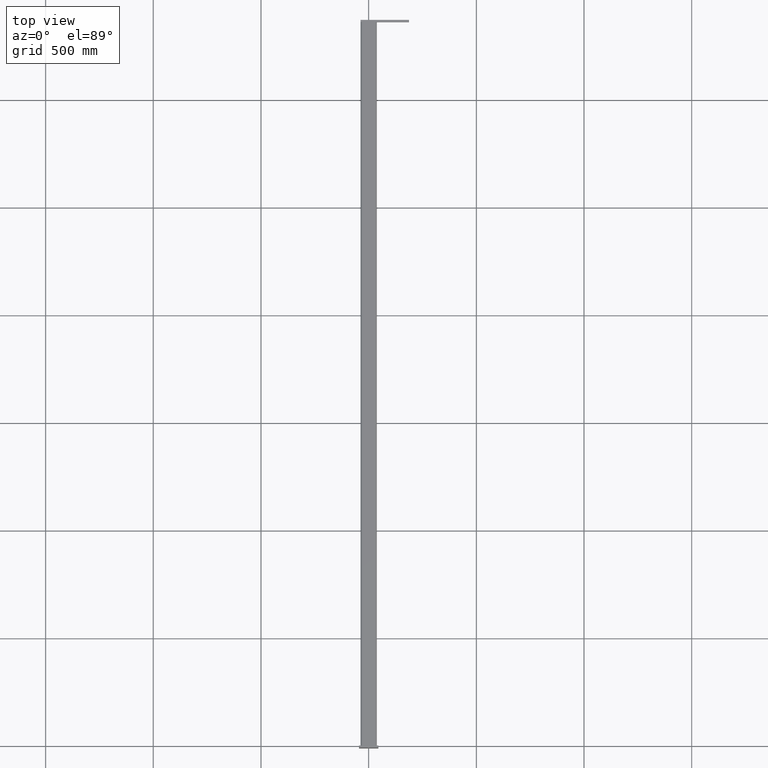
[diagram: clean part render]
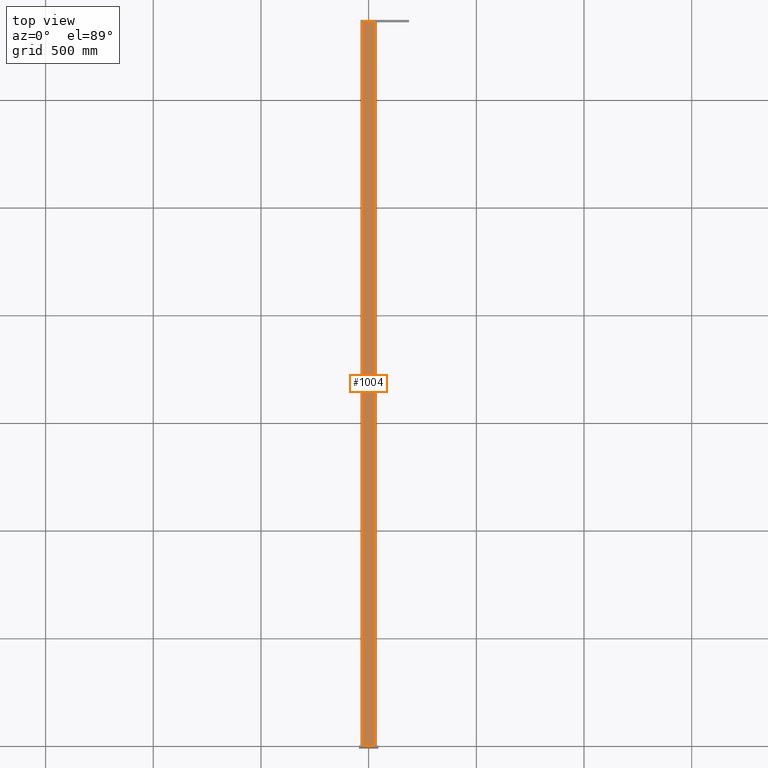
[diagram: same view with one face highlighted and labeled with its STEP entity id]
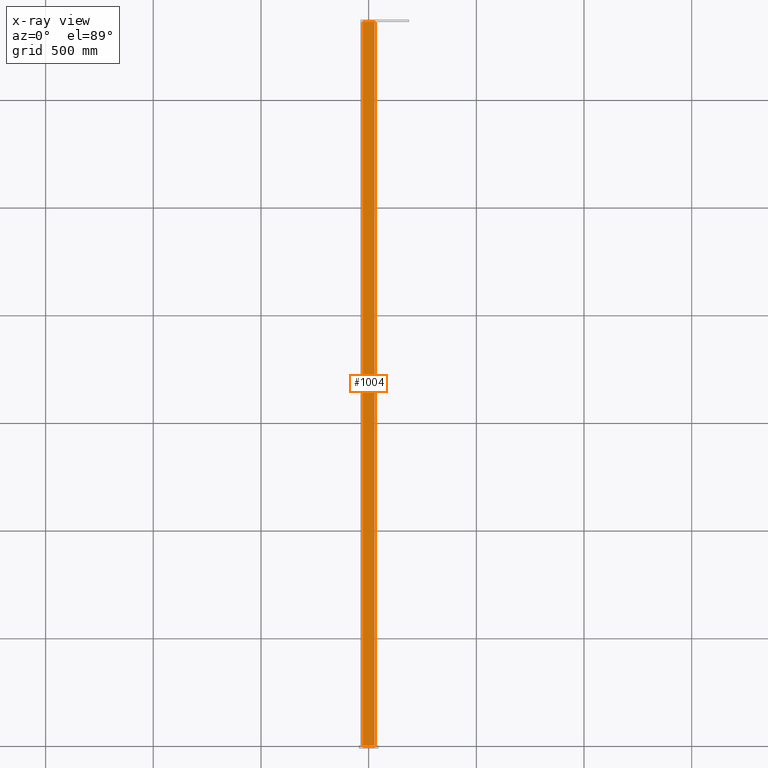
[diagram: x-ray of the same camera — body ghosted, the highlighted face saturated]
A machine part, top view. The second image highlights one B-rep face of the part: STEP entity #1004.
The next image is the same camera in x-ray: the body ghosted, the highlighted face saturated — about 0% of this face is hidden behind the body in this view.
In plain terms, the highlighted planar face has unit normal (0, 0, -1).
Its self-contained STEP definition (entity closure, byte-faithful):
#94 = DIRECTION ( 'NONE',  ( 0.000000000000000000, -1.000000000000000000, 1.261617073437677506E-16 ) ) ;
#118 = LINE ( 'NONE', #985, #2277 ) ;
#158 = ORIENTED_EDGE ( 'NONE', *, *, #635, .T. ) ;
#175 = VECTOR ( 'NONE', #994, 1000.000000000000000 ) ;
#279 = LINE ( 'NONE', #1538, #367 ) ;
#341 = CARTESIAN_POINT ( 'NONE',  ( 1680.500000000000000, -27.49999999999937117, -37.50000000000012079 ) ) ;
#367 = VECTOR ( 'NONE', #1177, 1000.000000000000000 ) ;
#461 = LINE ( 'NONE', #644, #1168 ) ;
#560 = CARTESIAN_POINT ( 'NONE',  ( -1680.500000000000000, 27.49999999999961631, -37.50000000000011369 ) ) ;
#563 = DIRECTION ( 'NONE',  ( -3.862588276837757019E-32, 1.261617073437677506E-16, 1.000000000000000000 ) ) ;
#601 = EDGE_CURVE ( 'NONE', #1408, #2313, #279, .T. ) ;
#615 = CARTESIAN_POINT ( 'NONE',  ( 1680.500000000000000, 27.50000000000064659, -37.50000000000011369 ) ) ;
#635 = EDGE_CURVE ( 'NONE', #2313, #1755, #118, .T. ) ;
#644 = CARTESIAN_POINT ( 'NONE',  ( -1680.500000000000000, 27.49999999999961275, -37.50000000000012790 ) ) ;
#788 = ORIENTED_EDGE ( 'NONE', *, *, #1115, .F. ) ;
#982 = LINE ( 'NONE', #1174, #175 ) ;
#985 = CARTESIAN_POINT ( 'NONE',  ( 1680.500000000000000, 27.50000000000064304, -37.50000000000012790 ) ) ;
#994 = DIRECTION ( 'NONE',  ( 1.000000000000000000, 3.061616997868382648E-16, -0.000000000000000000 ) ) ;
#1004 = ADVANCED_FACE ( 'NONE', ( #2201 ), #2237, .F. ) ;
#1083 = EDGE_CURVE ( 'NONE', #1796, #1755, #982, .T. ) ;
#1115 = EDGE_CURVE ( 'NONE', #1408, #1796, #461, .T. ) ;
#1168 = VECTOR ( 'NONE', #1183, 1000.000000000000000 ) ;
#1174 = CARTESIAN_POINT ( 'NONE',  ( -1680.500000000000000, -27.50000000000040146, -37.50000000000012079 ) ) ;
#1177 = DIRECTION ( 'NONE',  ( 1.000000000000000000, 3.061616997868382648E-16, -0.000000000000000000 ) ) ;
#1183 = DIRECTION ( 'NONE',  ( 0.000000000000000000, -1.000000000000000000, 1.261617073437677506E-16 ) ) ;
#1262 = EDGE_LOOP ( 'NONE', ( #158, #1655, #788, #2354 ) ) ;
#1283 = AXIS2_PLACEMENT_3D ( 'NONE', #2045, #563, #1633 ) ;
#1408 = VERTEX_POINT ( 'NONE', #560 ) ;
#1538 = CARTESIAN_POINT ( 'NONE',  ( -1680.500000000000000, 27.49999999999961631, -37.50000000000011369 ) ) ;
#1633 = DIRECTION ( 'NONE',  ( 0.000000000000000000, -1.000000000000000000, 1.261617073437677506E-16 ) ) ;
#1655 = ORIENTED_EDGE ( 'NONE', *, *, #1083, .F. ) ;
#1755 = VERTEX_POINT ( 'NONE', #341 ) ;
#1796 = VERTEX_POINT ( 'NONE', #2184 ) ;
#2045 = CARTESIAN_POINT ( 'NONE',  ( -1680.500000000000000, 27.49999999999961275, -37.50000000000012790 ) ) ;
#2184 = CARTESIAN_POINT ( 'NONE',  ( -1680.500000000000000, -27.50000000000040146, -37.50000000000012079 ) ) ;
#2201 = FACE_OUTER_BOUND ( 'NONE', #1262, .T. ) ;
#2237 = PLANE ( 'NONE',  #1283 ) ;
#2277 = VECTOR ( 'NONE', #94, 1000.000000000000000 ) ;
#2313 = VERTEX_POINT ( 'NONE', #615 ) ;
#2354 = ORIENTED_EDGE ( 'NONE', *, *, #601, .T. ) ;